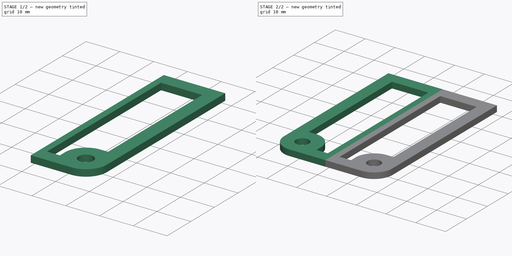
[diagram: build sequence overview — one tinted view per stage of 2, left to right]
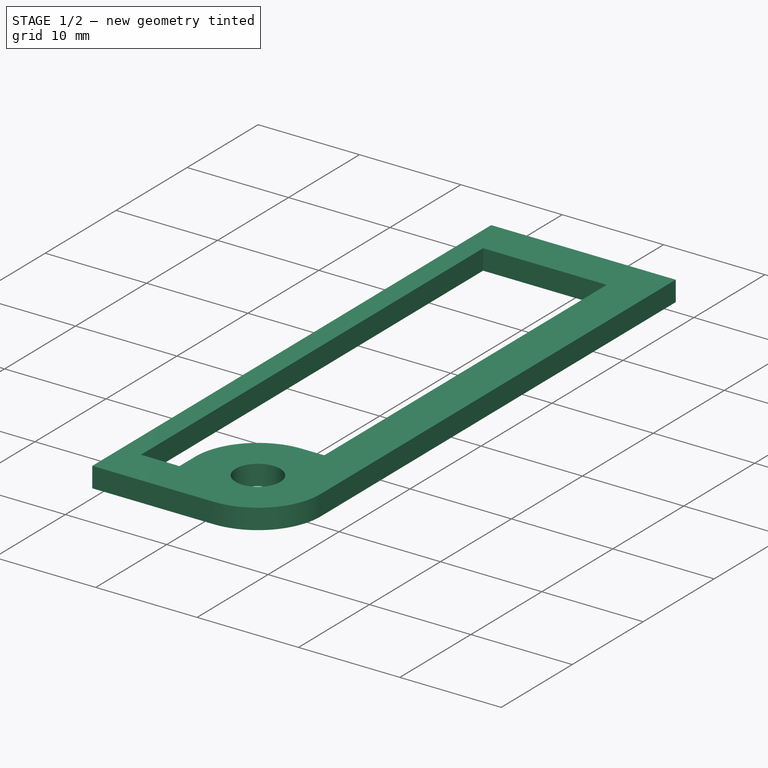
[diagram: stage 1 of 2 — iso view after this stage's code; geometry added in this stage tinted green]
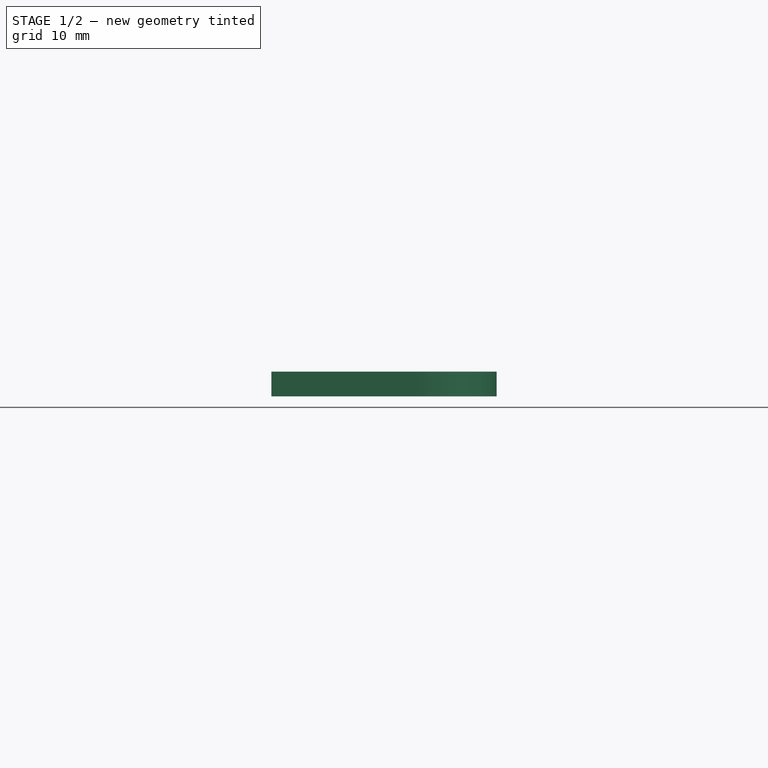
[diagram: stage 1 of 2 — front view after this stage's code; geometry added in this stage tinted green]
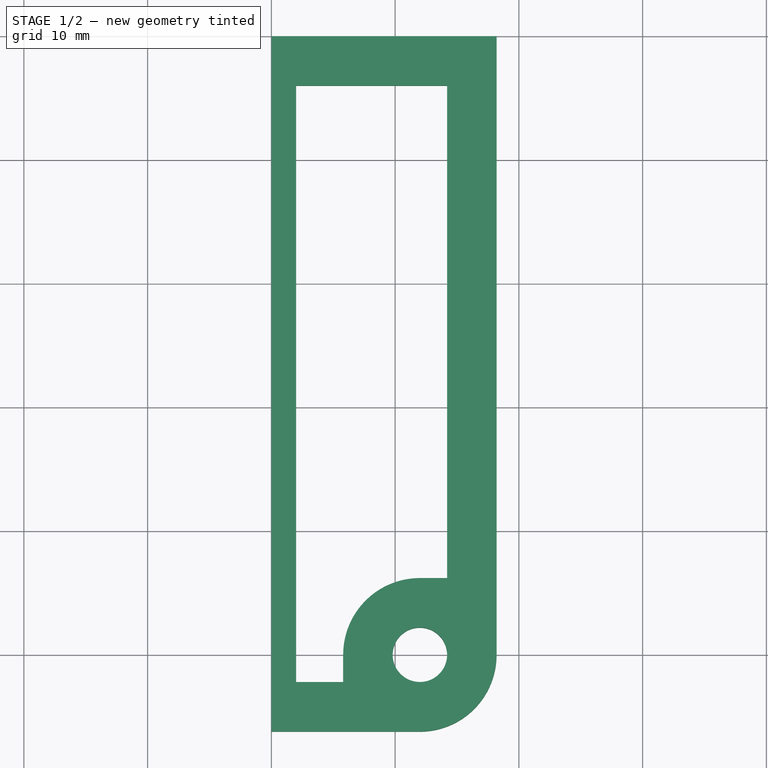
[diagram: stage 1 of 2 — top view after this stage's code; geometry added in this stage tinted green]
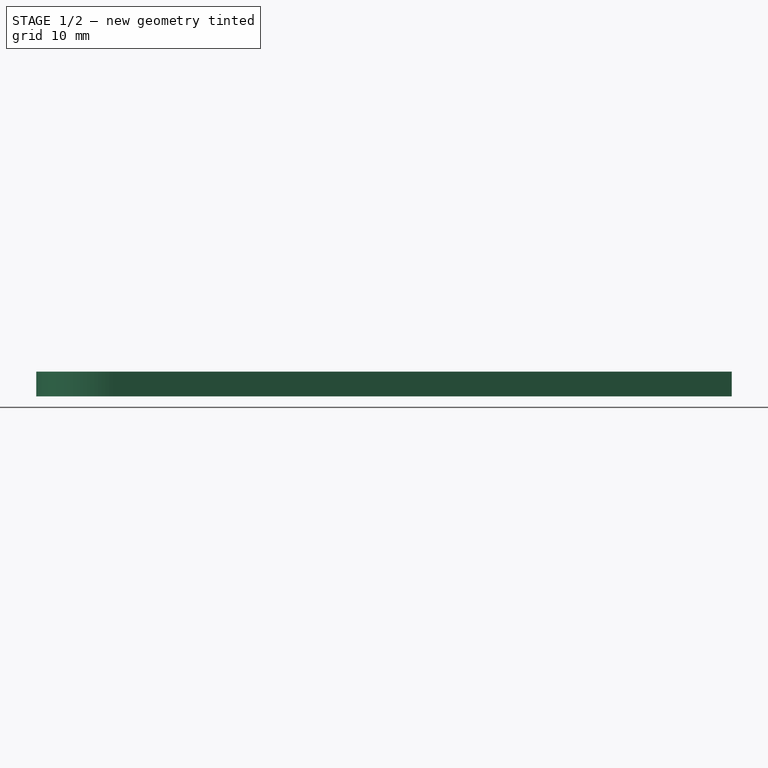
[diagram: stage 1 of 2 — right view after this stage's code; geometry added in this stage tinted green]
FCSTD DOCUMENT  (FreeCAD 0.19R24291 (Git))
Label: block
License: All rights reserved
LicenseURL: http://en.wikipedia.org/wiki/All_rights_reserved
objects: Sketcher::SketchObject×1, PartDesign::Pad×1, PartDesign::Mirrored×1, PartDesign::Body×1
note: 5 computed .brp shape members not serialized (recipe doc carries the construction recipe); baked Part::Feature solids carry a one-line shape summary decoded from their .brp

FEATURE [Sketcher::SketchObject] Sketch
  FullyConstrained = true
  MapMode = 5
  Support = -> [XY_Plane]
  sketch-geometry (13):
    g0: Circle CenterX=12 CenterY=0 CenterZ=0 NormalX=0 NormalY=0 NormalZ=1 AngleXU=0 Radius=2.2
    g1: ArcOfCircle CenterX=12 CenterY=0 CenterZ=0 NormalX=0 NormalY=0 NormalZ=1 AngleXU=0 Radius=6.2 StartAngle=4.71239 EndAngle=6.28319
    g2: LineSegment StartX=12 StartY=-6.2 StartZ=0 EndX=0 EndY=-6.2 EndZ=0
    g3: LineSegment StartX=18.2 StartY=-1.5e-15 StartZ=0 EndX=18.2 EndY=50 EndZ=0
    g4: LineSegment StartX=18.2 StartY=50 StartZ=0 EndX=0 EndY=50 EndZ=0
    g5: ArcOfCircle CenterX=12 CenterY=0 CenterZ=0 NormalX=0 NormalY=0 NormalZ=1 AngleXU=0 Radius=6.2 StartAngle=1.5708 EndAngle=3.14159
    g6: LineSegment StartX=5.8 StartY=8e-16 StartZ=0 EndX=5.8 EndY=-2.2 EndZ=0
    g7: LineSegment StartX=5.8 StartY=-2.2 StartZ=0 EndX=2 EndY=-2.2 EndZ=0
    g8: LineSegment StartX=14.2 StartY=46 StartZ=0 EndX=2 EndY=46 EndZ=0
    g9: LineSegment StartX=2 StartY=46 StartZ=0 EndX=2 EndY=-2.2 EndZ=0
    g10: LineSegment StartX=0 StartY=-6.2 StartZ=0 EndX=0 EndY=50 EndZ=0
    g11: LineSegment StartX=12 StartY=6.2 StartZ=0 EndX=14.2 EndY=6.2 EndZ=0
    g12: LineSegment StartX=14.2 StartY=46 StartZ=0 EndX=14.2 EndY=6.2 EndZ=0
  constraints (39):
    c: PointOnObject(g0,g-1)
    c: Coincident(g1,g0)
    c: PointOnObject(g1,g-1)
    c: Coincident(g2,g1)
    c: PointOnObject(g2,g-2)
    c: Horizontal(g2)
    c: Coincident(g3,g1)
    c: Vertical(g3)
    c: Coincident(g4,g3)
    c: PointOnObject(g4,g-2)
    c: Horizontal(g4)
    c: Coincident(g5,g0)
    c: PointOnObject(g5,g-1)
    c: Coincident(g6,g5)
    c: Vertical(g6)
    c: Coincident(g7,g6)
    c: Horizontal(g7)
    c: Horizontal(g8)
    c: Vertical(g9)
    c: Coincident(g8,g9)
    c: Coincident(g7,g9)
    c: Coincident(g10,g2)
    c: Coincident(g10,g4)
    c: Distance(g0,g4) = 50
    c: Diameter(g0) = 4.4
    c: Diameter(g5) = 12.4
    c: Coincident(g11,g5)
    c: Horizontal(g11)
    c: Coincident(g12,g8)
    c: Coincident(g12,g11)
    c: Vertical(g12)
    c: Distance(g0,g-2) = 12
    c: Tangent(g11,g5)
    c: Tangent(g1,g2)
    c: Equal(g1,g5)
    c: Distance(g11,g3) = 4
    c: Distance(g8,g4) = 4
    c: Distance(g6,g2) = 4
    c: Distance(g7,g10) = 2
FEATURE [PartDesign::Pad] Pad
  Direction = (1,1,1)
  Length = 2
  Length2 = 100
  Profile = -> Sketch
  Type = 0
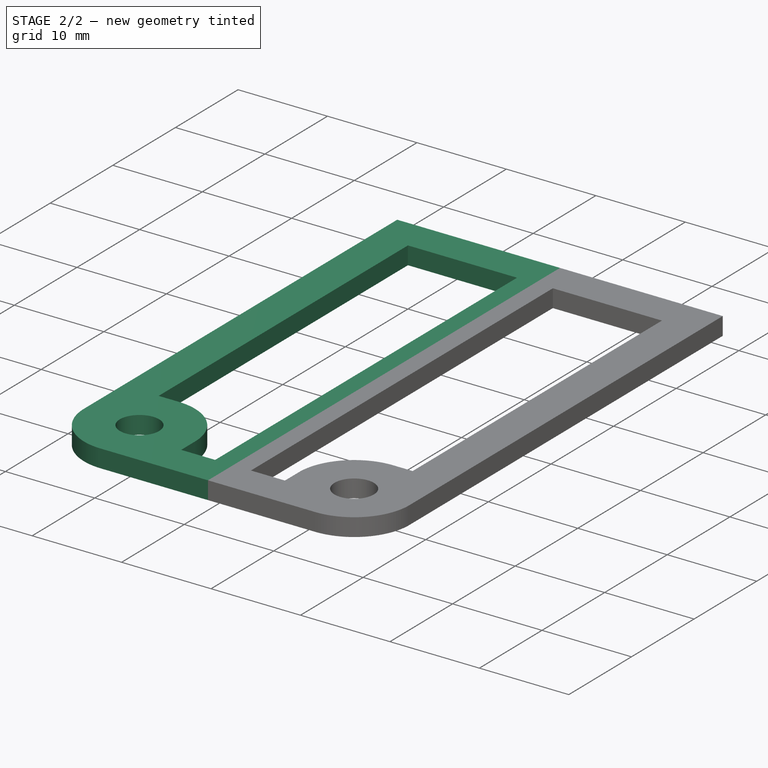
[diagram: stage 2 of 2 — iso view after this stage's code; geometry added in this stage tinted green]
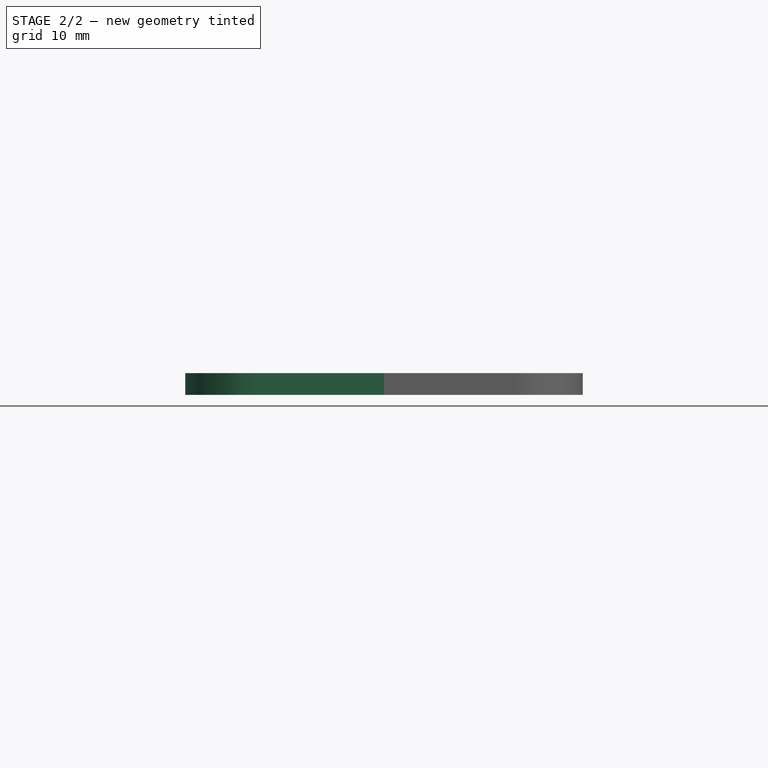
[diagram: stage 2 of 2 — front view after this stage's code; geometry added in this stage tinted green]
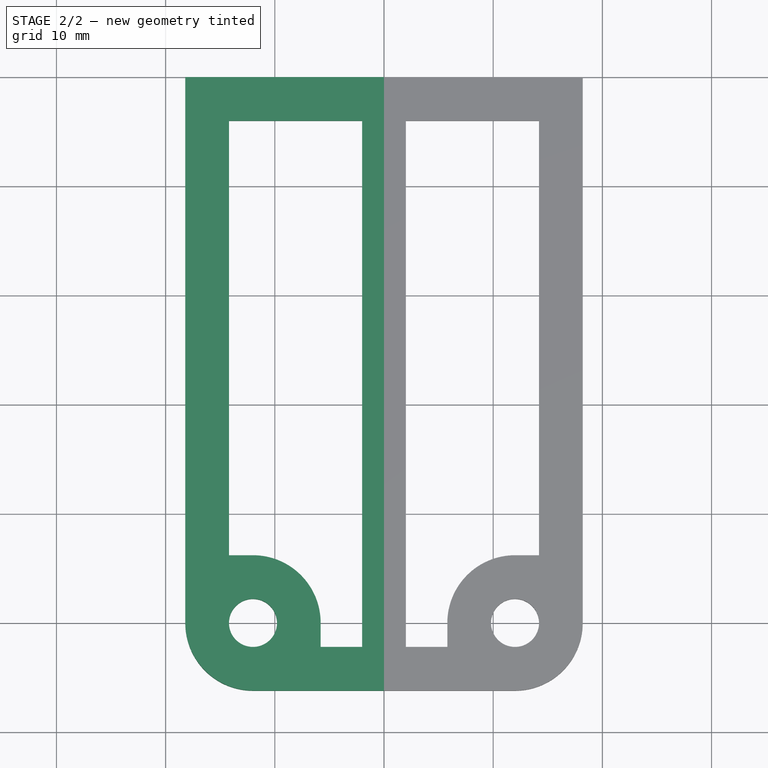
[diagram: stage 2 of 2 — top view after this stage's code; geometry added in this stage tinted green]
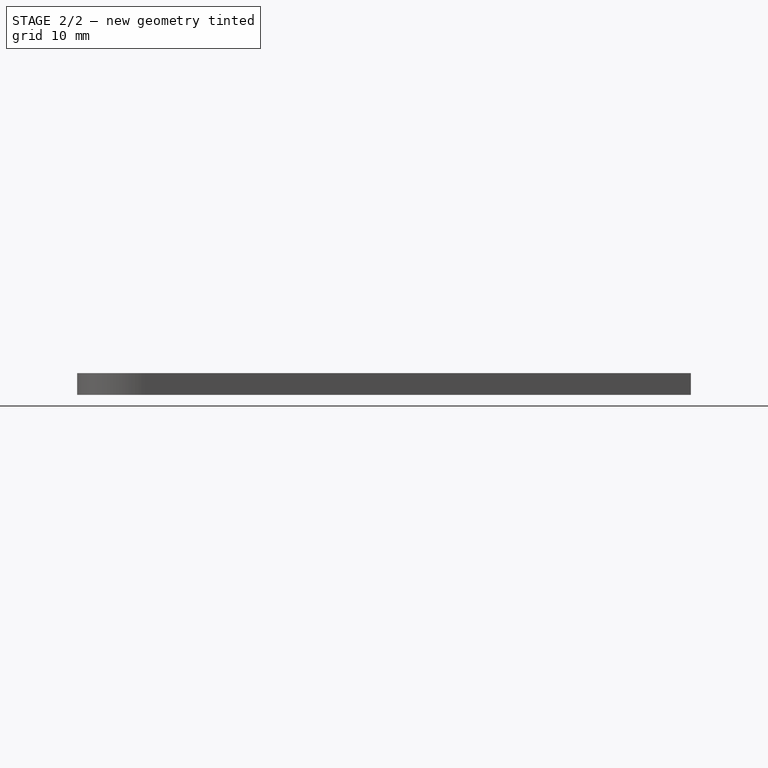
[diagram: stage 2 of 2 — right view after this stage's code; geometry added in this stage tinted green]
FEATURE [PartDesign::Mirrored] Mirrored
  BaseFeature = -> Pad
  MirrorPlane = -> Sketch [V_Axis]
  Originals = -> [Pad]
FEATURE [PartDesign::Body] Body
  Group = -> [Sketch,Pad,Mirrored]
  Origin = -> Origin
  Tip = -> Mirrored
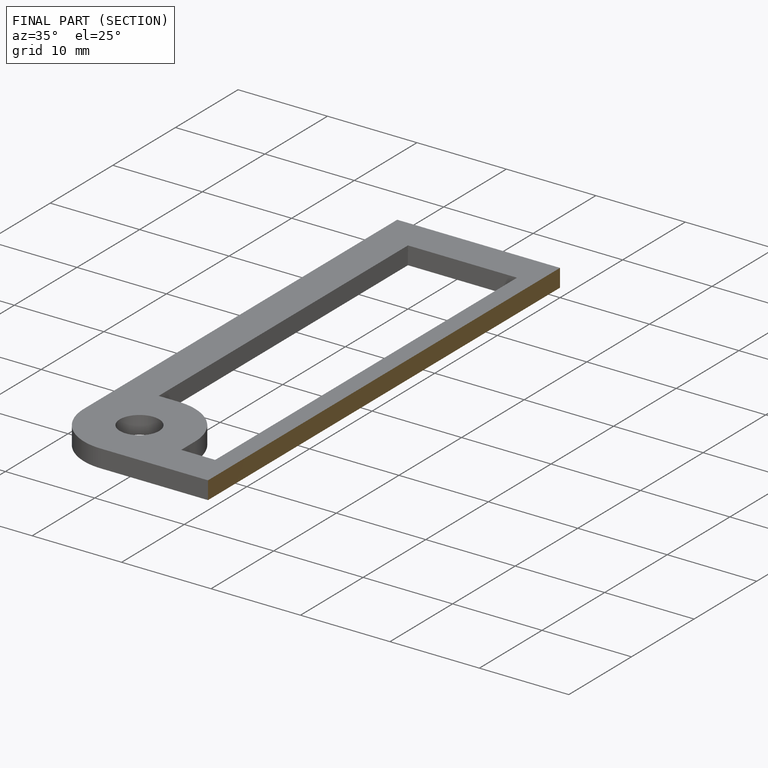
[diagram: finished part — half-section view (interior)]
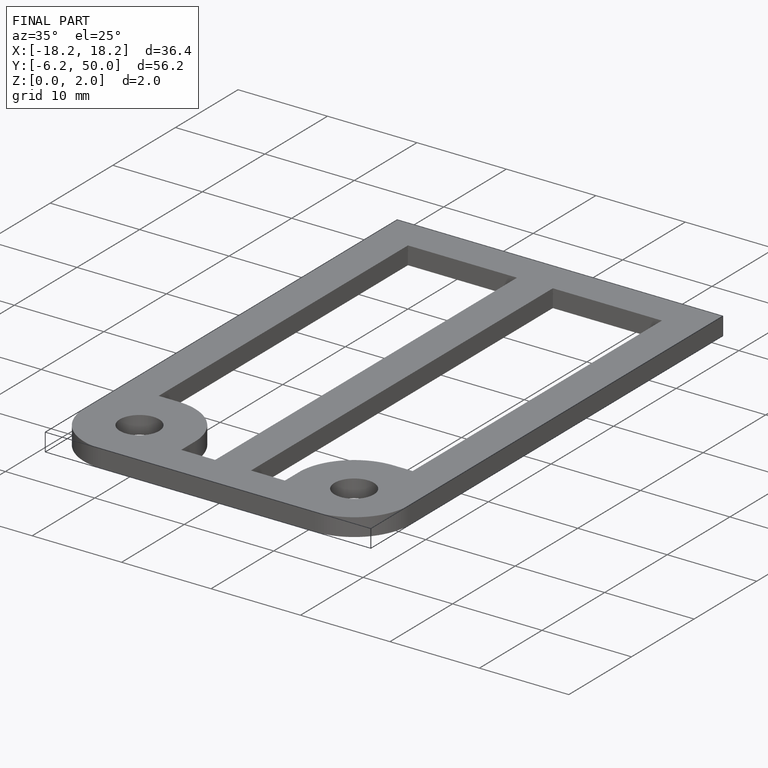
[diagram: finished part — iso view with bounding-box wireframe]
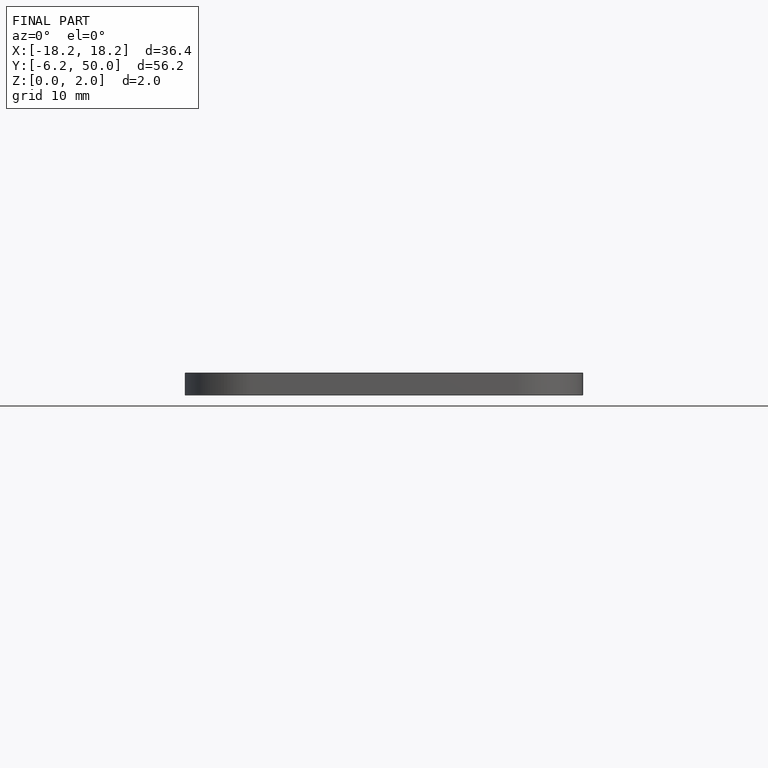
[diagram: finished part — front view with bounding-box wireframe]
